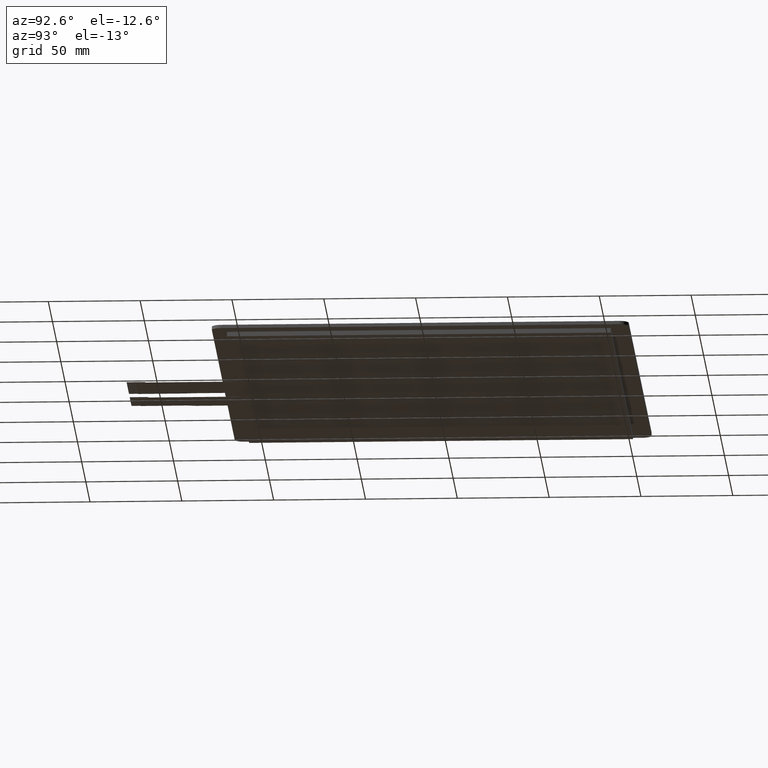
[diagram: clean part render]
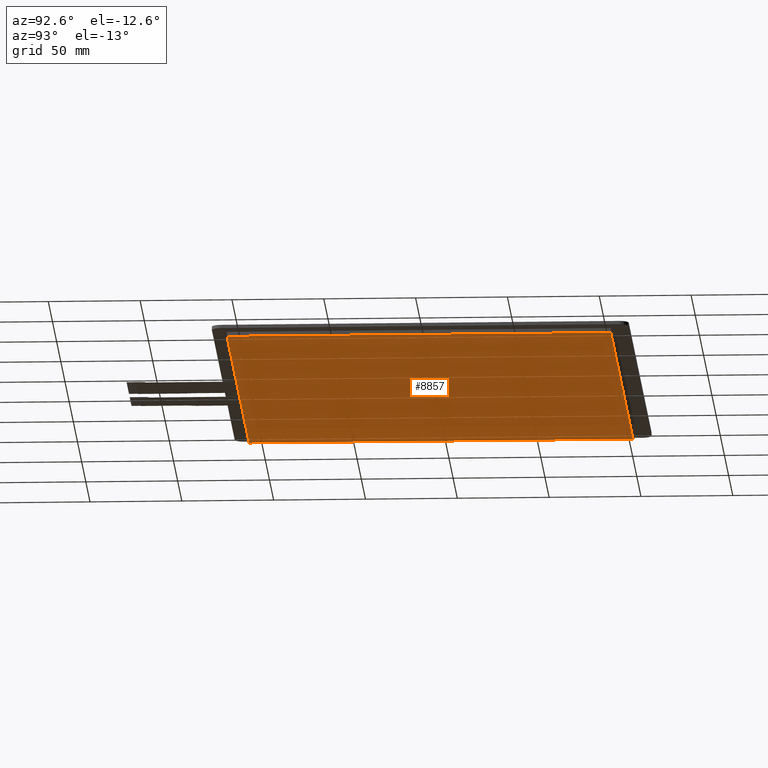
[diagram: same view with one face highlighted and labeled with its STEP entity id]
A machine part, auxiliary view. The second image highlights one B-rep face of the part: STEP entity #8857.
In plain terms, the highlighted planar face has unit normal (0, 0, -1).
Its self-contained STEP definition (entity closure, byte-faithful):
#490=FACE_OUTER_BOUND('',#919,.T.);
#919=EDGE_LOOP('',(#8009,#8010,#8011,#8012));
#2158=LINE('',#13938,#3403);
#2160=LINE('',#13942,#3405);
#2162=LINE('',#13946,#3407);
#2164=LINE('',#13949,#3409);
#3403=VECTOR('',#11417,10.);
#3405=VECTOR('',#11421,10.);
#3407=VECTOR('',#11425,10.);
#3409=VECTOR('',#11429,10.);
#4244=VERTEX_POINT('',#13935);
#4245=VERTEX_POINT('',#13937);
#4246=VERTEX_POINT('',#13941);
#4247=VERTEX_POINT('',#13945);
#5496=EDGE_CURVE('',#4245,#4244,#2158,.T.);
#5498=EDGE_CURVE('',#4246,#4245,#2160,.T.);
#5500=EDGE_CURVE('',#4247,#4246,#2162,.T.);
#5502=EDGE_CURVE('',#4244,#4247,#2164,.T.);
#8009=ORIENTED_EDGE('',*,*,#5502,.T.);
#8010=ORIENTED_EDGE('',*,*,#5500,.T.);
#8011=ORIENTED_EDGE('',*,*,#5498,.T.);
#8012=ORIENTED_EDGE('',*,*,#5496,.T.);
#8432=PLANE('',#9314);
#8857=ADVANCED_FACE('',(#490),#8432,.T.);
#9314=AXIS2_PLACEMENT_3D('',#13950,#11430,#11431);
#11417=DIRECTION('',(-1.69986300421077E-16,1.,0.));
#11421=DIRECTION('',(-1.,-2.0034099692484E-16,0.));
#11425=DIRECTION('',(8.49931502105383E-17,-1.,0.));
#11429=DIRECTION('',(1.,0.,0.));
#11430=DIRECTION('center_axis',(0.,0.,-1.));
#11431=DIRECTION('ref_axis',(-1.,0.,0.));
#13935=CARTESIAN_POINT('',(-133.8,100.95,-2.5));
#13937=CARTESIAN_POINT('',(-133.8,-108.05,-2.5));
#13938=CARTESIAN_POINT('',(-133.8,100.95,-2.5));
#13941=CARTESIAN_POINT('',(132.2,-108.05,-2.5));
#13942=CARTESIAN_POINT('',(-133.8,-108.05,-2.5));
#13945=CARTESIAN_POINT('',(132.2,100.95,-2.5));
#13946=CARTESIAN_POINT('',(132.2,-108.05,-2.5));
#13949=CARTESIAN_POINT('',(132.2,100.95,-2.5));
#13950=CARTESIAN_POINT('Origin',(-0.800000000000018,-3.54999999999995,-2.5));